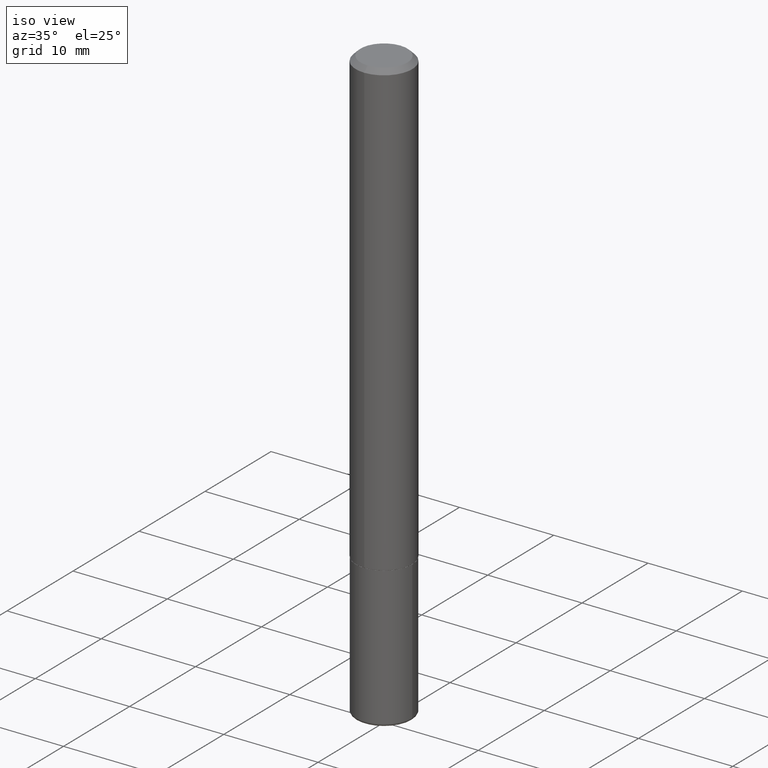
[diagram: clean part render]
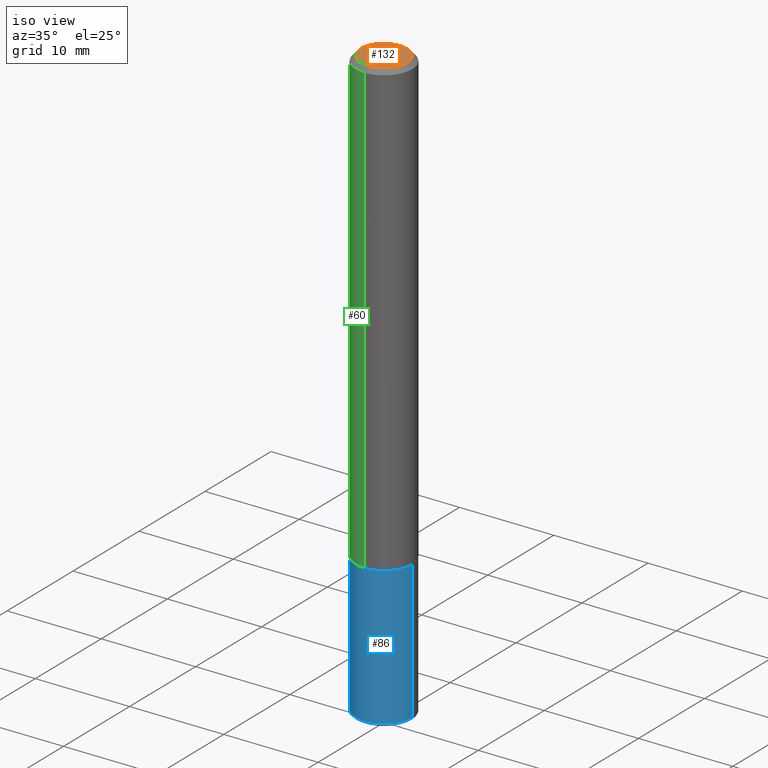
[diagram: same view with three faces highlighted in distinct colors, each labeled with its STEP entity id]
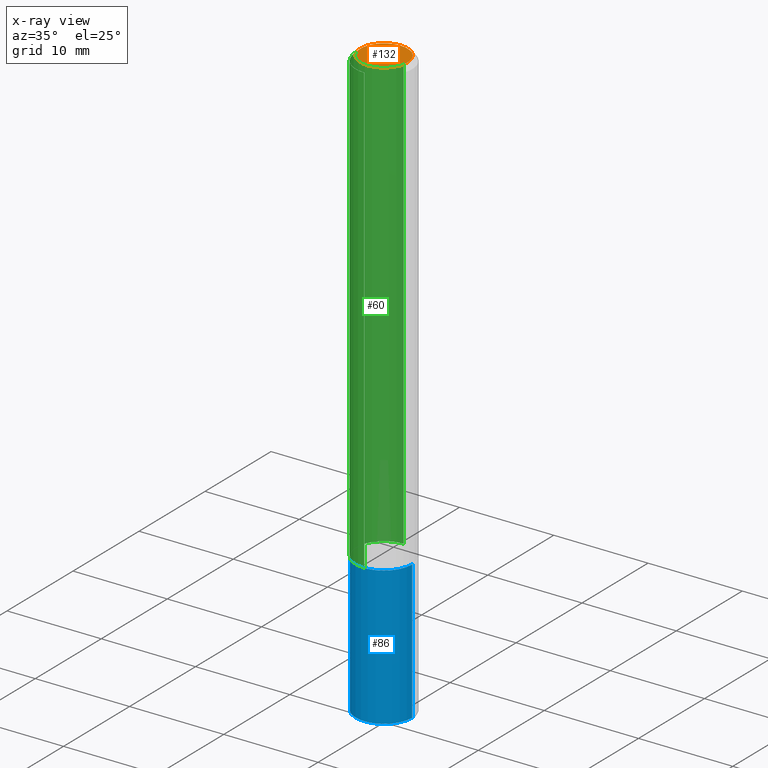
[diagram: x-ray of the same camera — body ghosted, the three highlighted faces saturated]
A machine part, iso view with three faces highlighted in distinct colors.
The next image is the same camera in x-ray (body ghosted, the three faces saturated) — at least one of them is partly hidden behind the body in this view.
Their STEP definitions:

[orange] entity #132 — the highlighted planar face has unit normal (0, -0, -1).
#2 = EDGE_CURVE ( 'NONE', #5, #232, #24, .T. ) ;
#5 = VERTEX_POINT ( 'NONE', #91 ) ;
#10 = EDGE_LOOP ( 'NONE', ( #224, #142 ) ) ;
#13 = CARTESIAN_POINT ( 'NONE',  ( 6.850286386810217648E-16, 0.09809999999999986786, -2.532481449102678727E-16 ) ) ;
#24 = CIRCLE ( 'NONE', #155, 0.09809999999999986786 ) ;
#39 = EDGE_CURVE ( 'NONE', #232, #5, #58, .T. ) ;
#58 = CIRCLE ( 'NONE', #295, 0.09809999999999986786 ) ;
#85 = DIRECTION ( 'NONE',  ( 2.440164489908769786E-29, -3.499077421653835966E-15, -1.000000000000000000 ) ) ;
#91 = CARTESIAN_POINT ( 'NONE',  ( 7.548582654578852602E-16, 0.09809999999999986786, -1.632367947562948598E-16 ) ) ;
#127 = DIRECTION ( 'NONE',  ( -6.982962677686265922E-15, -1.000000000000000000, 3.499077421653835571E-15 ) ) ;
#132 = ADVANCED_FACE ( 'NONE', ( #239 ), #181, .F. ) ;
#142 = ORIENTED_EDGE ( 'NONE', *, *, #39, .T. ) ;
#144 = AXIS2_PLACEMENT_3D ( 'NONE', #13, #85, #218 ) ;
#155 = AXIS2_PLACEMENT_3D ( 'NONE', #344, #211, #204 ) ;
#181 = PLANE ( 'NONE',  #144 ) ;
#186 = DIRECTION ( 'NONE',  ( -2.440164489908770066E-29, 3.499077421653835966E-15, 1.000000000000000000 ) ) ;
#204 = DIRECTION ( 'NONE',  ( -6.982962677686265922E-15, -1.000000000000000000, 3.499077421653835571E-15 ) ) ;
#211 = DIRECTION ( 'NONE',  ( -2.440164489908770066E-29, 3.499077421653835966E-15, 1.000000000000000000 ) ) ;
#218 = DIRECTION ( 'NONE',  ( 6.982962677686265922E-15, 1.000000000000000000, -3.499077421653835966E-15 ) ) ;
#224 = ORIENTED_EDGE ( 'NONE', *, *, #2, .T. ) ;
#226 = CARTESIAN_POINT ( 'NONE',  ( -7.416198335591019120E-16, -0.09809999999999986786, 5.232821953721869360E-16 ) ) ;
#232 = VERTEX_POINT ( 'NONE', #226 ) ;
#239 = FACE_OUTER_BOUND ( 'NONE', #10, .T. ) ;
#295 = AXIS2_PLACEMENT_3D ( 'NONE', #404, #186, #127 ) ;
#344 = CARTESIAN_POINT ( 'NONE',  ( -4.392850006689384576E-45, 6.299133660326889918E-31, 1.800227003079460011E-16 ) ) ;
#404 = CARTESIAN_POINT ( 'NONE',  ( -4.392850006689384576E-45, 6.299133660326889918E-31, 1.800227003079460011E-16 ) ) ;

[blue] entity #86 — the highlighted cylindrical surface (edge-blend (fillet) strip) has radius 2.9997 mm, axis along (-0, 0, 1).
#54 = EDGE_CURVE ( 'NONE', #408, #113, #107, .T. ) ;
#71 = CARTESIAN_POINT ( 'NONE',  ( 6.036639748068010694E-29, -8.618721684934306273E-15, -2.468500000000000139 ) ) ;
#76 = ORIENTED_EDGE ( 'NONE', *, *, #97, .F. ) ;
#86 = ADVANCED_FACE ( 'NONE', ( #279 ), #130, .T. ) ;
#97 = EDGE_CURVE ( 'NONE', #401, #408, #312, .T. ) ;
#107 = CIRCLE ( 'NONE', #117, 0.1180999999999999966 ) ;
#111 = CARTESIAN_POINT ( 'NONE',  ( 0.000000000000000000, 0.000000000000000000, 0.000000000000000000 ) ) ;
#113 = VERTEX_POINT ( 'NONE', #149 ) ;
#115 = DIRECTION ( 'NONE',  ( -2.445468806185136597E-29, 3.491481338843145583E-15, 1.000000000000000000 ) ) ;
#117 = AXIS2_PLACEMENT_3D ( 'NONE', #366, #336, #178 ) ;
#130 = CYLINDRICAL_SURFACE ( 'NONE', #371, 0.1180999999999999966 ) ;
#149 = CARTESIAN_POINT ( 'NONE',  ( 0.1180999999999999966, -7.422540178246641541E-15, -1.889700000000000379 ) ) ;
#156 = ORIENTED_EDGE ( 'NONE', *, *, #169, .T. ) ;
#157 = ORIENTED_EDGE ( 'NONE', *, *, #54, .F. ) ;
#161 = DIRECTION ( 'NONE',  ( 1.000000000000000000, -6.982962677686266711E-15, 4.876176775795936353E-29 ) ) ;
#169 = EDGE_CURVE ( 'NONE', #301, #113, #402, .T. ) ;
#178 = DIRECTION ( 'NONE',  ( 1.000000000000000000, -6.982962677686265133E-15, 0.000000000000000000 ) ) ;
#196 = DIRECTION ( 'NONE',  ( -2.445468806185136597E-29, 3.491481338843145583E-15, 1.000000000000000000 ) ) ;
#209 = CARTESIAN_POINT ( 'NONE',  ( 0.1180999999999999966, -8.246878922347480654E-16, 5.758764772215000440E-30 ) ) ;
#223 = CIRCLE ( 'NONE', #271, 0.1180999999999999966 ) ;
#261 = VECTOR ( 'NONE', #398, 39.37007874015748143 ) ;
#262 = CARTESIAN_POINT ( 'NONE',  ( 0.1181000000000001632, -9.443409577169056114E-15, -2.468500000000000139 ) ) ;
#271 = AXIS2_PLACEMENT_3D ( 'NONE', #71, #196, #329 ) ;
#279 = FACE_OUTER_BOUND ( 'NONE', #305, .T. ) ;
#284 = CARTESIAN_POINT ( 'NONE',  ( -0.1180999999999999966, -6.769136014540420790E-15, -1.889700000000000379 ) ) ;
#301 = VERTEX_POINT ( 'NONE', #262 ) ;
#305 = EDGE_LOOP ( 'NONE', ( #76, #399, #156, #157 ) ) ;
#312 = LINE ( 'NONE', #324, #261 ) ;
#323 = VECTOR ( 'NONE', #342, 39.37007874015748143 ) ;
#324 = CARTESIAN_POINT ( 'NONE',  ( -0.1180999999999999966, 8.391509709326782957E-16, -5.809262341591043784E-30 ) ) ;
#329 = DIRECTION ( 'NONE',  ( 1.000000000000000000, -6.982962677686265133E-15, 0.000000000000000000 ) ) ;
#336 = DIRECTION ( 'NONE',  ( -2.445468806185136597E-29, 3.491481338843145583E-15, 1.000000000000000000 ) ) ;
#342 = DIRECTION ( 'NONE',  ( -2.445468806185136877E-29, 3.491481338843145188E-15, 1.000000000000000000 ) ) ;
#346 = CARTESIAN_POINT ( 'NONE',  ( -0.1181000000000001632, -7.779570714001625710E-15, -2.468500000000000139 ) ) ;
#353 = EDGE_CURVE ( 'NONE', #401, #301, #223, .T. ) ;
#366 = CARTESIAN_POINT ( 'NONE',  ( 4.621202403048053204E-29, -6.597852286011893278E-15, -1.889700000000000379 ) ) ;
#371 = AXIS2_PLACEMENT_3D ( 'NONE', #111, #115, #161 ) ;
#398 = DIRECTION ( 'NONE',  ( -2.445468806185136877E-29, 3.491481338843145188E-15, 1.000000000000000000 ) ) ;
#399 = ORIENTED_EDGE ( 'NONE', *, *, #353, .T. ) ;
#401 = VERTEX_POINT ( 'NONE', #346 ) ;
#402 = LINE ( 'NONE', #209, #323 ) ;
#408 = VERTEX_POINT ( 'NONE', #284 ) ;

[green] entity #60 — the highlighted cylindrical surface (edge-blend (fillet) strip) has radius 2.9997 mm, axis along (-0, 0, 1).
#21 = DIRECTION ( 'NONE',  ( -6.982962677686265133E-15, -1.000000000000000000, 4.626330217890359081E-15 ) ) ;
#34 = EDGE_CURVE ( 'NONE', #101, #363, #347, .T. ) ;
#47 = DIRECTION ( 'NONE',  ( -2.440164489908770066E-29, 3.499077421653835966E-15, 1.000000000000000000 ) ) ;
#50 = DIRECTION ( 'NONE',  ( -6.982962677686265922E-15, -1.000000000000000000, 3.499077421653835966E-15 ) ) ;
#60 = ADVANCED_FACE ( 'NONE', ( #84 ), #307, .T. ) ;
#67 = AXIS2_PLACEMENT_3D ( 'NONE', #152, #47, #21 ) ;
#77 = DIRECTION ( 'NONE',  ( -2.440164489908770346E-29, 3.499077421653835966E-15, 1.000000000000000000 ) ) ;
#82 = CARTESIAN_POINT ( 'NONE',  ( 8.246878922347486570E-16, 0.1180999999999999689, -0.02000000000000047920 ) ) ;
#84 = FACE_OUTER_BOUND ( 'NONE', #263, .T. ) ;
#100 = CARTESIAN_POINT ( 'NONE',  ( -8.102248135368175393E-16, -0.1181000000000001077, -0.01999999999999965000 ) ) ;
#101 = VERTEX_POINT ( 'NONE', #413 ) ;
#105 = CARTESIAN_POINT ( 'NONE',  ( 4.880328979817555756E-31, -6.998154843307694069E-17, -0.02000000000000006287 ) ) ;
#128 = VECTOR ( 'NONE', #77, 39.37007874015748143 ) ;
#137 = VERTEX_POINT ( 'NONE', #303 ) ;
#140 = ORIENTED_EDGE ( 'NONE', *, *, #162, .T. ) ;
#143 = CARTESIAN_POINT ( 'NONE',  ( -8.246878922347489529E-16, -0.1181000000000001354, 4.132410434973184795E-16 ) ) ;
#152 = CARTESIAN_POINT ( 'NONE',  ( 4.608738672090694819E-29, -6.608707526277601759E-15, -1.888700000000000268 ) ) ;
#159 = LINE ( 'NONE', #143, #128 ) ;
#162 = EDGE_CURVE ( 'NONE', #101, #137, #355, .T. ) ;
#166 = VECTOR ( 'NONE', #369, 39.37007874015748143 ) ;
#168 = DIRECTION ( 'NONE',  ( -6.982962677686265922E-15, -1.000000000000000000, 3.505890868245044514E-15 ) ) ;
#208 = CARTESIAN_POINT ( 'NONE',  ( 0.000000000000000000, 0.000000000000000000, 0.000000000000000000 ) ) ;
#219 = EDGE_CURVE ( 'NONE', #137, #273, #159, .T. ) ;
#225 = EDGE_CURVE ( 'NONE', #363, #273, #412, .T. ) ;
#238 = CARTESIAN_POINT ( 'NONE',  ( 8.391509709326791832E-16, 0.1181000000000001354, -4.132410434973184795E-16 ) ) ;
#247 = ORIENTED_EDGE ( 'NONE', *, *, #225, .F. ) ;
#263 = EDGE_LOOP ( 'NONE', ( #358, #140, #269, #247 ) ) ;
#269 = ORIENTED_EDGE ( 'NONE', *, *, #219, .T. ) ;
#270 = DIRECTION ( 'NONE',  ( -2.440164489908770066E-29, 3.499077421653835966E-15, 1.000000000000000000 ) ) ;
#273 = VERTEX_POINT ( 'NONE', #100 ) ;
#303 = CARTESIAN_POINT ( 'NONE',  ( -8.246878922347036920E-16, -0.1181000000000068662, -1.888699999999999823 ) ) ;
#307 = CYLINDRICAL_SURFACE ( 'NONE', #338, 0.1181000000000001354 ) ;
#338 = AXIS2_PLACEMENT_3D ( 'NONE', #208, #341, #50 ) ;
#341 = DIRECTION ( 'NONE',  ( -2.440164489908770066E-29, 3.499077421653835966E-15, 1.000000000000000000 ) ) ;
#347 = LINE ( 'NONE', #238, #166 ) ;
#355 = CIRCLE ( 'NONE', #67, 0.1181000000000002603 ) ;
#356 = AXIS2_PLACEMENT_3D ( 'NONE', #105, #270, #168 ) ;
#358 = ORIENTED_EDGE ( 'NONE', *, *, #34, .F. ) ;
#363 = VERTEX_POINT ( 'NONE', #82 ) ;
#369 = DIRECTION ( 'NONE',  ( -2.440164489908770346E-29, 3.499077421653835966E-15, 1.000000000000000000 ) ) ;
#412 = CIRCLE ( 'NONE', #356, 0.1181000000000000383 ) ;
#413 = CARTESIAN_POINT ( 'NONE',  ( 8.391509709327030462E-16, 0.1180999999999936684, -1.888700000000000712 ) ) ;